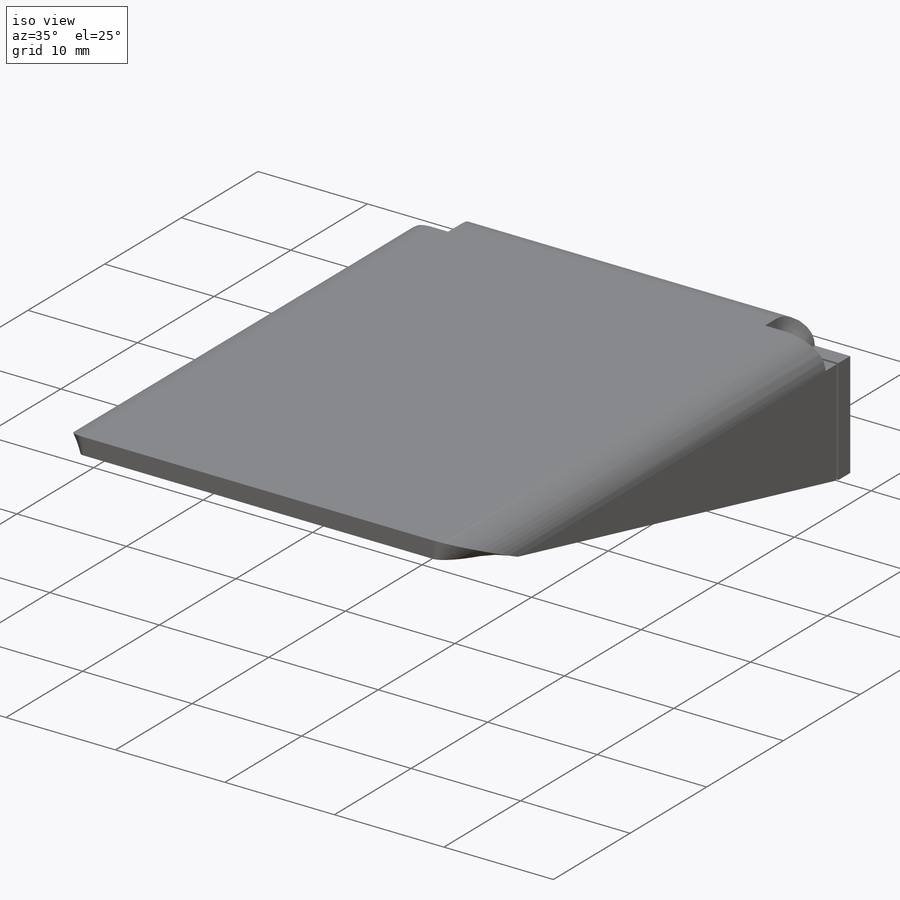
[diagram: iso view]
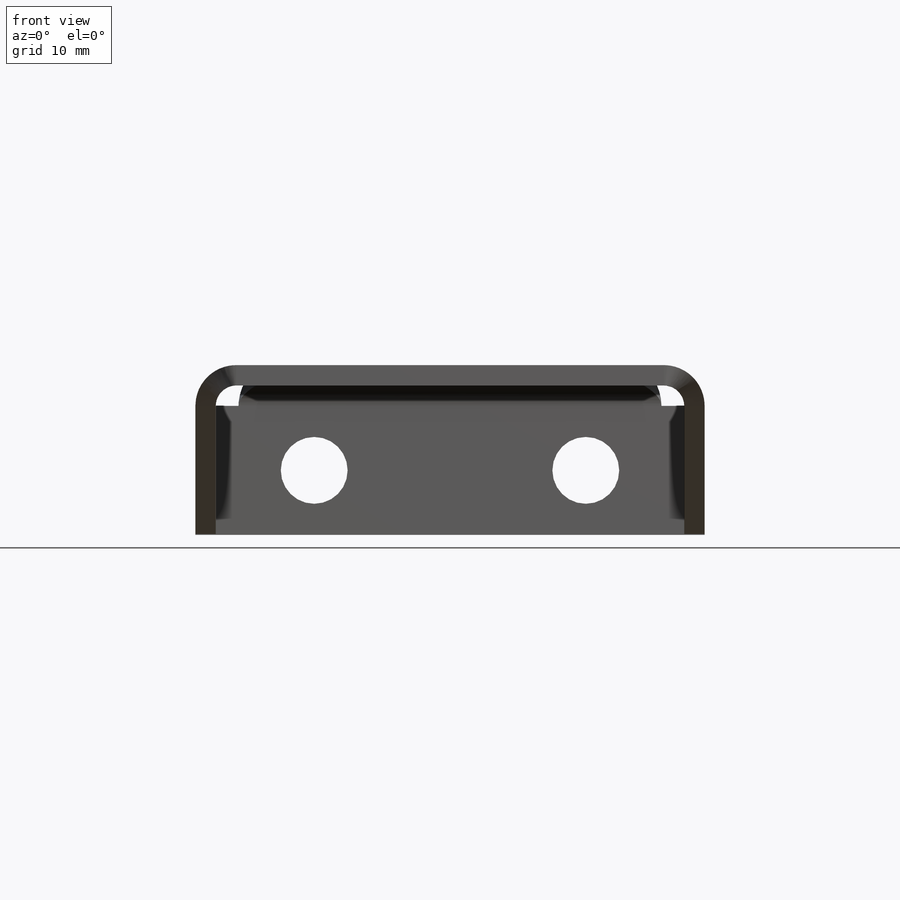
[diagram: front view]
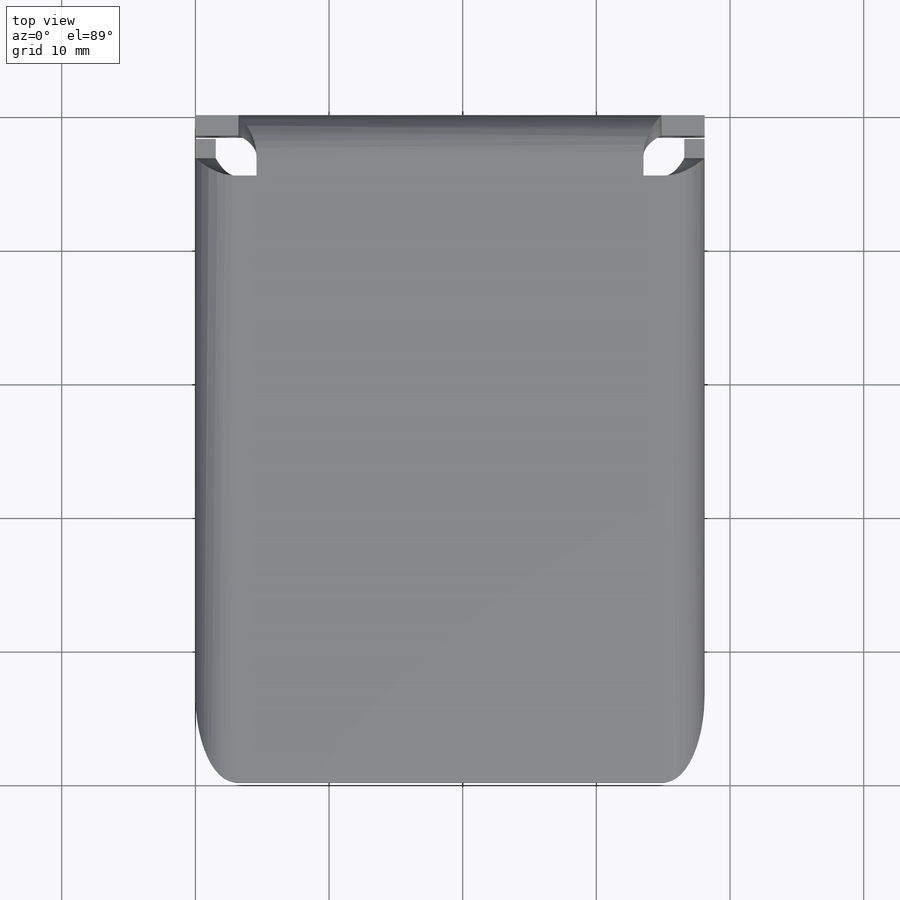
[diagram: top view]
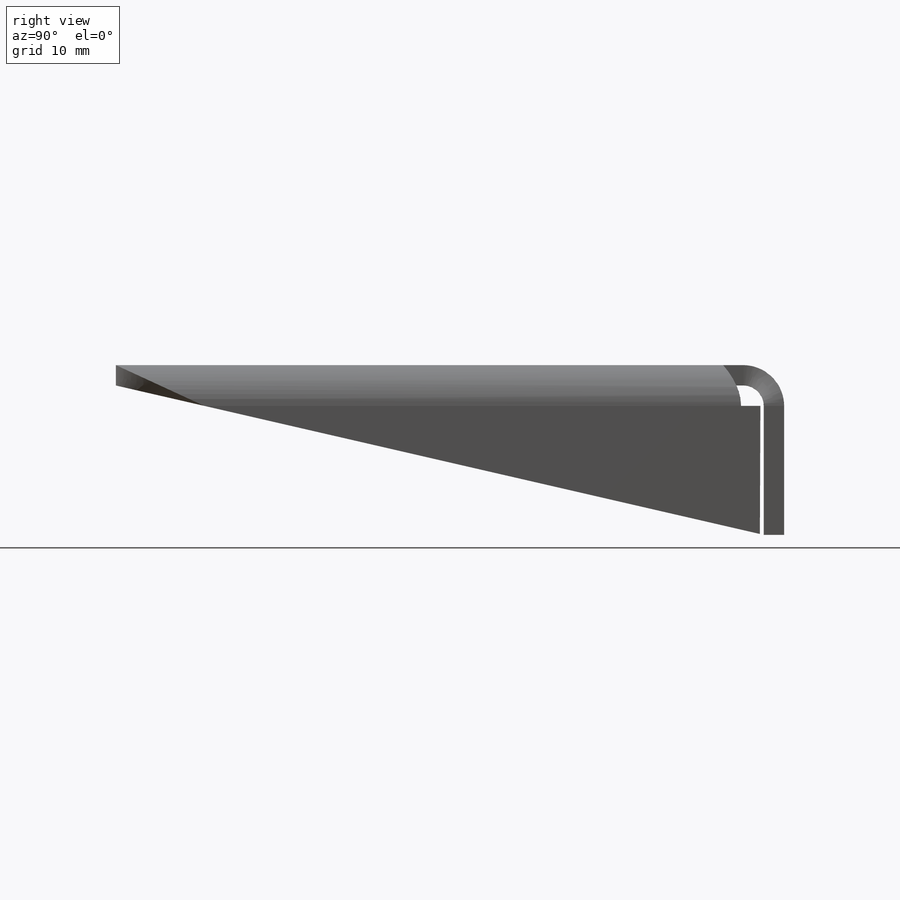
[diagram: right view]
SOLIDWORKS PART (.sldprt)
format: sldprt  version: not decoded by parser v0  size: 382,464 bytes
history: native  units: mm
features: sketch x9, cut_extrude x2, sheet_metal_op x2, material x1, extrude x1, shell x1 + 2 further entries (+13 scaffold rows collapsed; 2 parser-record rows omitted)
feature tree (33):
  scaffold x13  (default folders/planes/origin — collapsed)
  material  "AISI 1020 Steel, Cold Rolled"
  sketch  "Sketch1"  dims[D1=38.1mm D2=12.7mm]
  extrude  "Boss-Extrude1"  Depth=50mm
  shell  "Shell2"  Thickness=1.524mm
  sketch  "Sketch2"  dims[D1=1.524mm D2=1.524mm]
  cut_extrude  "Cut-Extrude1"  Depth=10mm SharpBend2=0 SharpBend3=0
  sketch  "Sketch7"  dims[c1.D1=5.0mm c1.D2=5.0mm c1.D5=5.0mm c1.D3=4.826mm c1.D4=4.826mm c2.D5=8.89mm c2.D6=8.89mm]
  cut_extrude  "Cut-Extrude2"  Depth=50mm
  sketch  "Bend-Lines1"
  sketch  "Bounding-Box1"
  sheet_metal_op  "Sheet-Metal3"
  "Flat-Pattern3"
  sketch  "Bend-Lines2"
  sketch  "Bounding-Box2"
  parser-record x2  (decoder bookkeeping rows leaked as tree rows — omitted from the tree; the rows remain in map.json)
  sheet_metal_op  "Sheet-Metal4"
  "Flat-Pattern3"
  sketch  "Bend-Lines2"
  sketch  "Bounding-Box2"
decode coverage: 7 of 15 modeling features carry decoded parameters; 2 rows unclassified (native names shown)
note: suppression state not decoded; provenance and decode notes live in map.json
